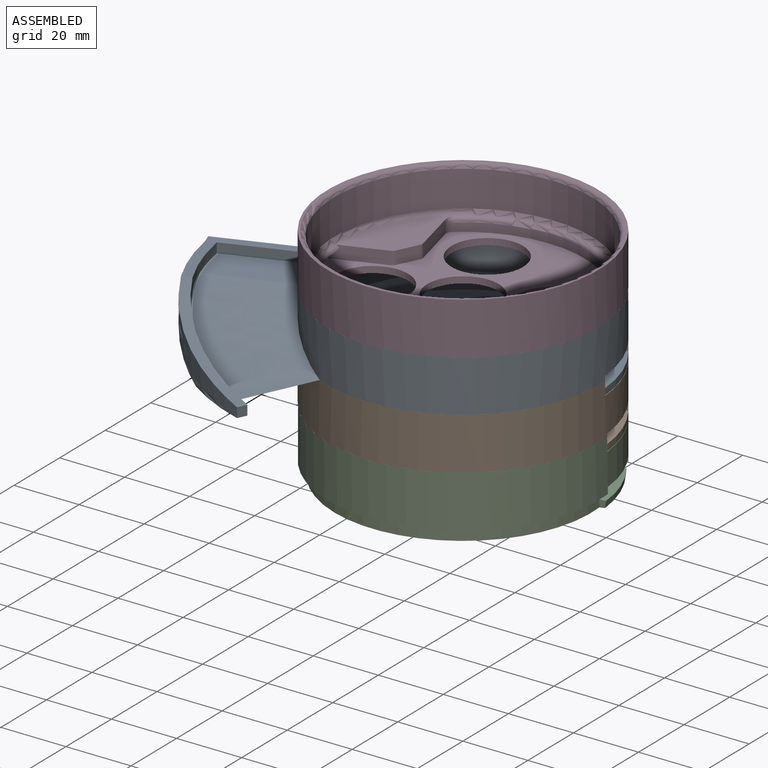
[diagram: assembled view]
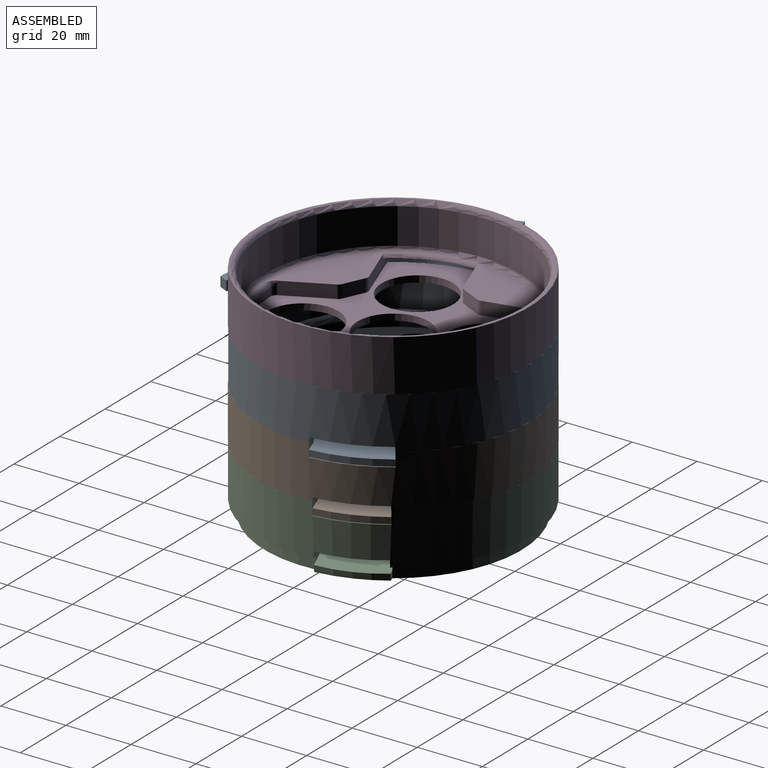
[diagram: assembled view, second angle]
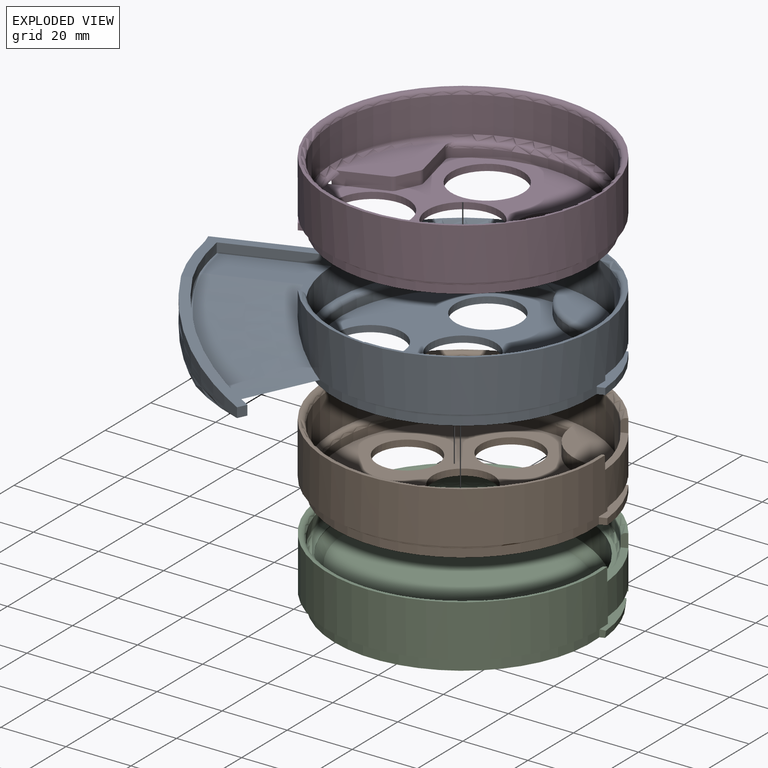
[diagram: exploded view]
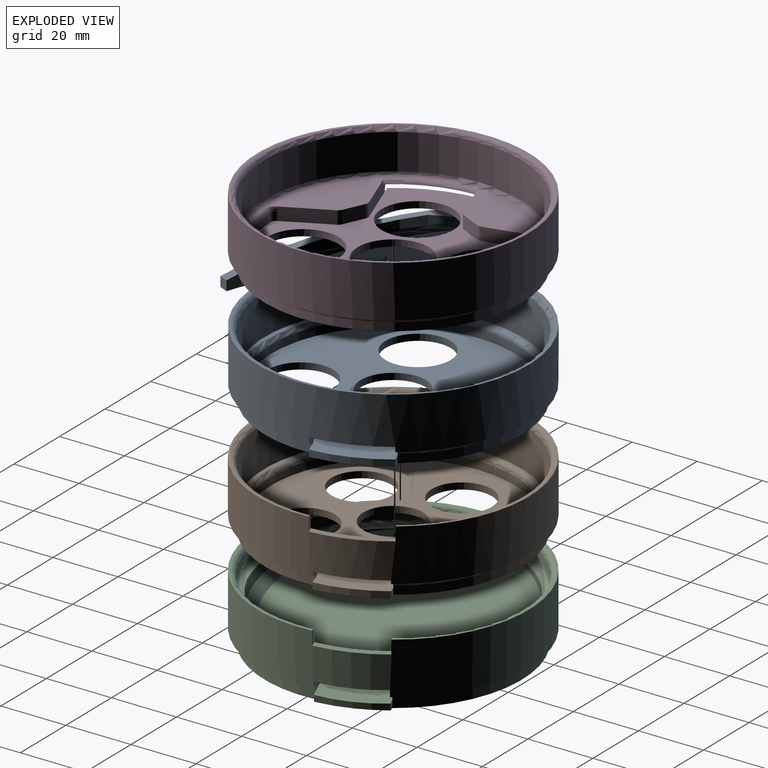
[diagram: exploded view, second angle]
ASSEMBLY  parts=4 mates=3
PART A: 49 faces, bbox 102.5x118.8x20 mm
  f0: plane 3x0.02mm, normal (0,1,0), area 0.1mm2, adj f28,f39,f41,f48
  f1: plane 3x0.02mm, normal (0,1,0), area 0.1mm2, adj f2,f28,f42,f48
  f2: cylinder r=41.65mm len=83.3mm, axis (0,0,1), area 3867.1mm2, adj f1,f10,f13,f19,f20,f21,f28,f29
  f3: cylinder r=68.65mm len=1.24mm, axis (0,0,-1), area 0.2mm2, adj f35,f42,f45
  f4: cylinder r=39.65mm len=79.3mm, axis (0,0,1), area 3046mm2, adj f5,f12,f28,f29,f30
  f5: torus R=41.15mm, axis (0,0,-1), area 535.7mm2, adj f4,f13,f29,f30
  f6: cylinder r=37.5mm len=75mm, axis (0,0,1), area 371.5mm2, adj f7,f22,f23,f25
  f7: plane 79.15x75mm, normal (0,0,1), area 2541.6mm2, adj f6,f14,f15,f16,f17,f18,f20,f21
  f8: plane 81.15x79mm, normal (0,0,-1), area 3379.9mm2, adj f11,f14,f15,f16,f17,f18,f31,f32
  f9: cylinder r=37.5mm len=25.64mm, axis (0,0,1), area 12.5mm2, adj f12,f19,f20,f21,f24,f26
  f10: plane 98.79x98.44mm, normal (0,0,-1), area 557mm2, adj f2,f20,f21,f27,f34,f35,f36,f37
  f11: cylinder r=39.5mm len=79mm, axis (0,0,1), area 563.4mm2, adj f8,f20,f21,f27,f31,f32
  f12: plane 79.3x79.3mm, normal (0,0,1), area 592.7mm2, adj f4,f9,f24,f25,f26
  f13: plane 83.3x81.41mm, normal (0,0,1), area 117.5mm2, adj f2,f5,f29,f30
  f14: cylinder r=10mm len=20mm, axis (0,0,1), area 125.7mm2, adj f7,f8
  f15: cylinder r=10mm len=20mm, axis (0,0,1), area 125.7mm2, adj f7,f8
  f16: cylinder r=10mm len=20mm, axis (0,0,1), area 125.7mm2, adj f7,f8
  f17: cylinder r=10mm len=20mm, axis (0,0,1), area 125.7mm2, adj f7,f8
  f18: cylinder r=10mm len=20mm, axis (0,0,1), area 125.7mm2, adj f7,f8
  f19: plane 22.5x5.88mm, normal (0,0,-1), area 94.7mm2, adj f2,f9,f20,f21
  f20: plane 4.33x3.5mm, normal (1,0,0), area 11.2mm2, adj f2,f7,f9,f10,f11,f19,f22,f27
  f21: plane 4.33x3.5mm, normal (-1,0,0), area 11.2mm2, adj f2,f7,f9,f10,f11,f19,f23,f27
  f22: cylinder r=22.99mm len=23.13mm, axis (0,0,-1), area 85.4mm2, adj f6,f7,f20,f24
  f23: cylinder r=22.99mm len=23.13mm, axis (0,0,-1), area 85.4mm2, adj f6,f7,f21,f26
  f24: torus R=21.49mm, axis (0,0,-1), area 78.9mm2, adj f9,f12,f22,f25
  f25: torus R=39mm, axis (0,0,-1), area 357mm2, adj f6,f12,f24,f26
  f26: torus R=21.49mm, axis (0,0,-1), area 78.9mm2, adj f9,f12,f23,f25
  f27: torus R=41mm, axis (0,0,1), area 539.1mm2, adj f10,f11,f20,f21
  f28: plane 30.99x24.82mm, normal (0,0,1), area 388.8mm2, adj f0,f1,f2,f4,f29,f30,f36,f39
  f29: plane 4.2x2.1mm, normal (1,0,0), area 8.3mm2, adj f2,f4,f5,f13,f28
  f30: plane 4.2x2.1mm, normal (-1,0,0), area 8.3mm2, adj f2,f4,f5,f13,f28
  f31: plane 2.24x2mm, normal (-1,0,0), area 4.5mm2, adj f7,f8,f11,f33
  f32: plane 2.24x2mm, normal (1,0,0), area 4.5mm2, adj f7,f8,f11,f33
  f33: cylinder r=41.65mm len=22.5mm, axis (0,0,1), area 45.6mm2, adj f7,f8,f31,f32
  f34: bspline ~70.35x29.35mm, area 256.3mm2, adj f10,f35,f38,f40
  f35: bspline ~53.53x36.15mm, area 1036.5mm2, adj f2,f3,f10,f34,f42,f45
  f36: bspline ~48.54x39.2mm, area 1213.1mm2, adj f2,f10,f28,f37
  f37: bspline ~54.63x27.08mm, area 109.3mm2, adj f10,f36,f39
  f38: cylinder r=71.65mm len=14.24mm, axis (0,0,-1), area 21.5mm2, adj f34,f42,f46
  f39: cylinder r=68.65mm len=67.03mm, axis (0,0,-1), area 226.9mm2, adj f0,f28,f37,f41,f43,f44
  f40: cylinder r=71.65mm len=69.17mm, axis (0,0,-1), area 234mm2, adj f34,f41,f43,f44,f46
  f41: plane 32.95x24.63mm, normal (0,0,1), area 158.6mm2, adj f0,f2,f39,f40,f44,f46,f47,f48
  f42: plane 32.95x17.24mm, normal (0,0,-1), area 429.5mm2, adj f1,f2,f3,f35,f38,f45,f46,f47
  f43: plane 3x2.14mm, normal (0.71,0.71,0), area 9.1mm2, adj f10,f39,f40,f44
  f44: bspline ~47.54x29.48mm, area 169.1mm2, adj f39,f40,f41,f43
  f45: plane 6.13x0.27mm, normal (1,0,0), area 0.9mm2, adj f3,f35,f42
  f46: plane 6x3mm, normal (0,-1,0), area 18mm2, adj f38,f40,f41,f42,f47
  f47: plane 31.87x6mm, normal (-1,0,0), area 191.2mm2, adj f2,f41,f42,f46
  f48: plane 27.77x6mm, normal (1,0,0), area 83.3mm2, adj f0,f1,f2,f28,f41,f42
PART B: 30 faces, bbox 91.4x89.6x20 mm
  f0: cylinder r=39.65mm len=79.3mm, axis (0,0,1), area 3053.2mm2, adj f2,f7,f24,f25,f26
  f1: cylinder r=41.65mm len=83.3mm, axis (0,0,1), area 4071.2mm2, adj f8,f9,f17,f18,f19,f24,f25,f26
  f2: torus R=41.15mm, axis (0,0,-1), area 541mm2, adj f0,f8,f25,f26
  f3: cylinder r=37.5mm len=75mm, axis (0,0,1), area 398.2mm2, adj f6,f20,f21,f22
  f4: cylinder r=37.5mm len=20.5mm, axis (0,0,1), area 20.8mm2, adj f7,f17,f18,f19
  f5: plane 81.15x79mm, normal (0,0,-1), area 3333.4mm2, adj f10,f11,f12,f13,f14,f15,f16,f27
  f6: plane 79.15x75mm, normal (0,0,1), area 2537.2mm2, adj f3,f11,f12,f13,f14,f15,f16,f18
  f7: plane 79.3x79.3mm, normal (0,0,1), area 631.8mm2, adj f0,f4,f18,f19,f20,f21,f22
  f8: plane 83.3x81.73mm, normal (0,0,1), area 118.6mm2, adj f1,f2,f25,f26
  f9: plane 83.3x82.02mm, normal (0,0,-1), area 155.3mm2, adj f1,f18,f19,f23
  f10: cylinder r=39.5mm len=79mm, axis (0,0,1), area 568.6mm2, adj f5,f18,f19,f23,f28,f29
  f11: cylinder r=9.25mm len=18.5mm, axis (0,0,1), area 116.2mm2, adj f5,f6
  f12: cylinder r=9.25mm len=18.5mm, axis (0,0,1), area 116.2mm2, adj f5,f6
  f13: cylinder r=9.25mm len=18.5mm, axis (0,0,1), area 116.2mm2, adj f5,f6
  f14: cylinder r=9.25mm len=18.5mm, axis (0,0,1), area 116.2mm2, adj f5,f6
  f15: cylinder r=9.25mm len=18.5mm, axis (0,0,1), area 116.2mm2, adj f5,f6
  f16: cylinder r=9.25mm len=18.5mm, axis (0,0,1), area 116.2mm2, adj f5,f6
  f17: plane 20.5x5.58mm, normal (0,0,-1), area 86.1mm2, adj f1,f4,f18,f19
  f18: plane 4.77x4mm, normal (1,0,0), area 10.8mm2, adj f1,f4,f6,f7,f9,f10,f17,f20
  f19: plane 4.77x4mm, normal (-1,0,0), area 10.8mm2, adj f1,f4,f6,f7,f9,f10,f17,f21
  f20: cylinder r=16.84mm len=23.11mm, axis (0,0,-1), area 124.9mm2, adj f3,f6,f7,f18,f22
  f21: cylinder r=16.84mm len=23.11mm, axis (0,0,-1), area 124.9mm2, adj f3,f6,f7,f19,f22
  f22: torus R=39mm, axis (0,0,-1), area 380.2mm2, adj f3,f7,f20,f21
  f23: torus R=41mm, axis (0,0,1), area 544mm2, adj f9,f10,f18,f19
  f24: plane 22.65x3.65mm, normal (0,0,1), area 45.9mm2, adj f0,f1,f25,f26
  f25: plane 4.15x2.08mm, normal (1,0,0), area 8.1mm2, adj f0,f1,f2,f8,f24
  f26: plane 4.15x2.08mm, normal (-1,0,0), area 8.1mm2, adj f0,f1,f2,f8,f24
  f27: cylinder r=41.65mm len=20.5mm, axis (0,0,1), area 41.4mm2, adj f5,f6,f28,f29
  f28: plane 2.22x2mm, normal (1,0,0), area 4.4mm2, adj f5,f6,f10,f27
  f29: plane 2.22x2mm, normal (-1,0,0), area 4.4mm2, adj f5,f6,f10,f27
PART C: 23 faces, bbox 90.2x91.7x20.5 mm
  f0: cylinder r=39.5mm len=79mm, axis (0,0,1), area 911.9mm2, adj f5,f7,f13,f14,f21,f22
  f1: cylinder r=41.65mm len=83.3mm, axis (0,0,1), area 4060.1mm2, adj f5,f6,f12,f13,f14,f17,f18,f19
  f2: cylinder r=39.65mm len=79.3mm, axis (0,0,1), area 692mm2, adj f3,f16,f17,f18,f19
  f3: torus R=41.15mm, axis (0,0,-1), area 546.1mm2, adj f2,f6,f18,f19
  f4: cylinder r=37.5mm len=75mm, axis (0,0,1), area 1016.6mm2, adj f9,f12,f13,f14,f15
  f5: plane 83.3x82.08mm, normal (0,0,-1), area 504.7mm2, adj f0,f1,f13,f14
  f6: plane 83.3x82mm, normal (0,0,1), area 119.6mm2, adj f1,f3,f18,f19
  f7: plane 80.75x79.31mm, normal (0,0,-1), area 512.9mm2, adj f0,f8,f20,f21,f22
  f8: cylinder r=37.5mm len=75mm, axis (0,0,1), area 1149.8mm2, adj f7,f11
  f9: plane 76.3x76.3mm, normal (0,0,1), area 154.5mm2, adj f4,f16
  f10: plane 76.36x70.09mm, normal (0.12,0,0.99), area 3976.1mm2, adj f13,f14,f15,f20,f21,f22
  f11: plane 75x75mm, normal (-0.12,0,-0.99), area 4450.5mm2, adj f8
  f12: plane 20.3x5.8mm, normal (-0.12,0,-0.99), area 84.5mm2, adj f1,f4,f13,f14
  f13: plane 7.42x4.31mm, normal (0,1,0), area 17.7mm2, adj f0,f1,f4,f5,f10,f12,f15
  f14: plane 7.42x4.31mm, normal (0,-1,0), area 17.7mm2, adj f0,f1,f4,f5,f10,f12,f15
  f15: bspline ~75x73.58mm, area 779mm2, adj f4,f10,f13,f14
  f16: torus R=38.15mm, axis (0,0,-1), area 578.9mm2, adj f2,f9
  f17: plane 20.65x3.37mm, normal (0,0,1), area 41.8mm2, adj f1,f2,f18,f19
  f18: plane 4.31x2.23mm, normal (0,-1,0), area 8.1mm2, adj f1,f2,f3,f6,f17
  f19: plane 4.31x2.23mm, normal (0,1,0), area 8.1mm2, adj f1,f2,f3,f6,f17
  f20: extruded ~20x2.18mm, area 41.3mm2, adj f7,f10,f21,f22
  f21: plane 2.24x1.74mm, normal (0,-1,0), area 3.5mm2, adj f0,f7,f10,f20
  f22: plane 2.24x1.74mm, normal (0,1,0), area 3.5mm2, adj f0,f7,f10,f20
PART D: 38 faces, bbox 91.8x91.8x20.4 mm
  f0: plane 17.76x4.24mm, normal (1,0,0), area 62.2mm2, adj f2,f5,f9,f10,f11,f16,f18,f19
  f1: plane 17.76x4.24mm, normal (-1,0,0), area 62.2mm2, adj f5,f6,f9,f10,f11,f16,f18,f19
  f2: plane 24.14x23.94mm, normal (0,0,1), area 299.7mm2, adj f0,f16,f20,f21,f30,f35,f36
  f3: cylinder r=37.5mm len=75mm, axis (0,0,1), area 375.1mm2, adj f5,f25,f29,f31
  f4: plane 81.15x79mm, normal (0,0,-1), area 3054.5mm2, adj f11,f12,f13,f14,f15,f26,f27,f28
  f5: plane 79.15x75mm, normal (0,0,1), area 2064.5mm2, adj f0,f1,f3,f12,f13,f14,f15,f20
  f6: plane 24.14x23.94mm, normal (0,0,1), area 299.7mm2, adj f1,f16,f22,f23,f32,f33,f34
  f7: cylinder r=39.65mm len=79.3mm, axis (0,0,1), area 2740.4mm2, adj f16,f17
  f8: plane 83.3x83.3mm, normal (0,0,1), area 130.1mm2, adj f9,f17
  f9: cylinder r=41.65mm len=83.3mm, axis (0,0,1), area 4162.2mm2, adj f0,f1,f8,f10,f19
  f10: plane 83.3x81.46mm, normal (0,0,-1), area 152.6mm2, adj f0,f1,f9,f18
  f11: cylinder r=39.5mm len=79mm, axis (0,0,1), area 558.2mm2, adj f0,f1,f4,f18,f27,f28
  f12: cylinder r=11mm len=22mm, axis (0,0,-1), area 138.2mm2, adj f4,f5
  f13: cylinder r=11mm len=22mm, axis (0,0,-1), area 138.2mm2, adj f4,f5
  f14: cylinder r=11mm len=22mm, axis (0,0,-1), area 138.2mm2, adj f4,f5
  f15: cylinder r=11mm len=22mm, axis (0,0,-1), area 138.2mm2, adj f4,f5
  f16: torus R=38.15mm, axis (0,0,-1), area 506.3mm2, adj f0,f1,f2,f6,f7,f24,f25,f30
  f17: torus R=41.15mm, axis (0,0,-1), area 595.1mm2, adj f7,f8
  f18: torus R=41mm, axis (0,0,1), area 534.5mm2, adj f0,f1,f10,f11
  f19: plane 24.5x6.21mm, normal (0,0,-1), area 103.4mm2, adj f0,f1,f9,f24
  f20: plane 4.88x4.8mm, normal (0.71,-0.7,0), area 27.4mm2, adj f2,f5,f35,f36
  f21: plane 15.23x4mm, normal (0.11,-0.99,0), area 60.2mm2, adj f2,f5,f29,f30,f35
  f22: plane 4.88x4.8mm, normal (-0.71,-0.7,0), area 27.4mm2, adj f5,f6,f33,f34
  f23: plane 15.23x4mm, normal (-0.11,-0.99,0), area 60.2mm2, adj f5,f6,f31,f32,f33
  f24: torus R=38.95mm, axis (0,0,1), area 38.7mm2, adj f0,f1,f16,f19
  f25: torus R=39mm, axis (0,0,-1), area 275.8mm2, adj f3,f16,f30,f32
  f26: cylinder r=41.65mm len=24.5mm, axis (0,0,1), area 49.7mm2, adj f4,f5,f27,f28
  f27: plane 2.26x2mm, normal (1,0,0), area 4.5mm2, adj f4,f5,f11,f26
  f28: plane 2.26x2mm, normal (-1,0,0), area 4.5mm2, adj f4,f5,f11,f26
  f29: cylinder r=2mm len=2.62mm, axis (0,0,1), area 5.9mm2, adj f3,f5,f21,f30
  f30: bspline ~3.91x3.67mm, area 4.1mm2, adj f2,f16,f21,f25,f29
  f31: cylinder r=2mm len=2.62mm, axis (0,0,1), area 5.9mm2, adj f3,f5,f23,f32
  f32: bspline ~3.67x3.6mm, area 4.1mm2, adj f6,f16,f23,f25,f31
  f33: cylinder r=2mm len=4mm, axis (0,0,-1), area 5.5mm2, adj f5,f6,f22,f23
  f34: cylinder r=2mm len=4mm, axis (0,0,1), area 6.2mm2, adj f1,f5,f6,f22
  f35: cylinder r=2mm len=4mm, axis (0,0,-1), area 5.5mm2, adj f2,f5,f20,f21
  f36: cylinder r=2mm len=4mm, axis (0,0,1), area 6.2mm2, adj f0,f2,f5,f20
  f37: cylinder r=11mm len=22mm, axis (0,0,1), area 138.2mm2, adj f4,f5
PLACE A rot(axis=(0,0,-1),70deg) t=(-83.48,-57.81,-167.06)mm
PLACE B rot(axis=(0,0,-1),70deg) t=(-83.48,-57.81,-176.54)mm
PLACE C rot(axis=(0,0,1),20deg) t=(-83.48,-57.81,-192.54)mm
PLACE D rot(axis=(0,0,1),110deg) t=(-83.48,-57.81,-149.06)mm
MATE fastened B.f22 <-> A.f5  axis (0,0,1) through (-83.48,-57.81,-163.06)mm
MATE fastened B.f22 <-> C.f16  axis (0,0,-1) through (-83.48,-57.81,-179.06)mm
MATE fastened D.f3 <-> A.f3  axis (0,0,1) through (-83.48,-57.81,-148.56)mm
